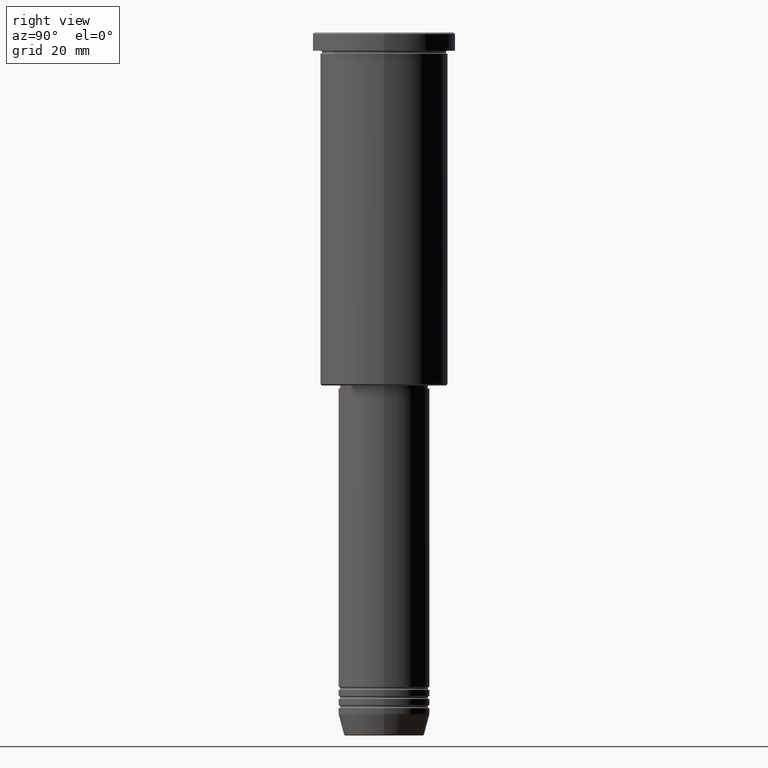
[diagram: clean part render]
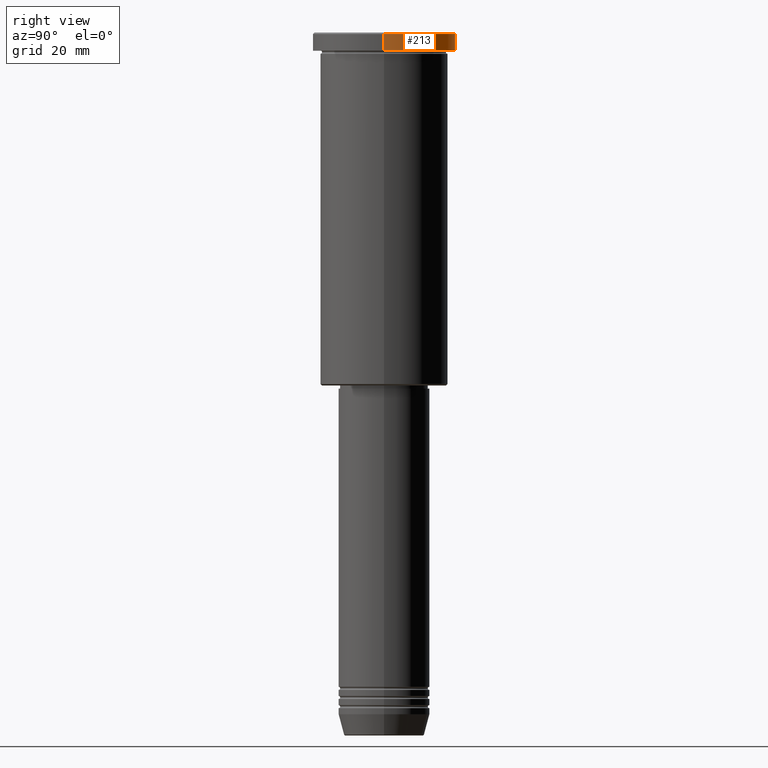
[diagram: same view with one face highlighted and labeled with its STEP entity id]
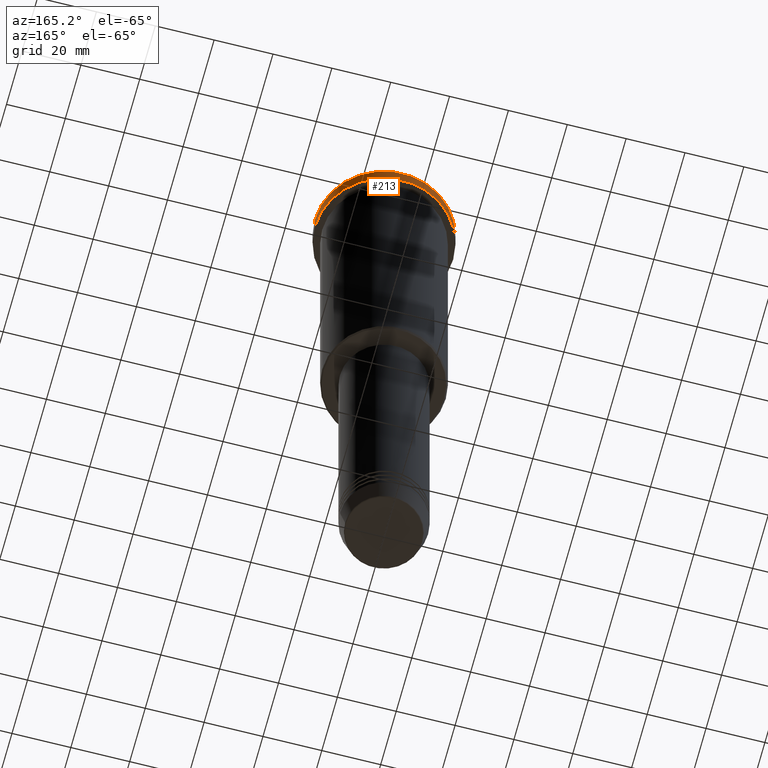
[diagram: same view with one face highlighted and labeled with its STEP entity id]
A machine part, right view. The second image highlights one B-rep face of the part: STEP entity #213.
A second angle (auxiliary view) of the same face is appended — the face is thin or edge-on in the first view.
In plain terms, the highlighted cylindrical surface (partial cylindrical patch) has radius 23.5 mm, axis along (-0, -0, 1).
Its self-contained STEP definition (entity closure, byte-faithful):
#4 = AXIS2_PLACEMENT_3D ( 'NONE', #529, #701, #798 ) ;
#48 = LINE ( 'NONE', #787, #902 ) ;
#56 = DIRECTION ( 'NONE',  ( -0.000000000000000000, -0.000000000000000000, 1.000000000000000000 ) ) ;
#68 = CARTESIAN_POINT ( 'NONE',  ( -23.50000000000000000, 2.877919977996280320E-15, -5.999999999999994671 ) ) ;
#79 = AXIS2_PLACEMENT_3D ( 'NONE', #1088, #836, #380 ) ;
#177 = CARTESIAN_POINT ( 'NONE',  ( 23.50000000000000000, 0.000000000000000000, -5.999999999999994671 ) ) ;
#204 = CIRCLE ( 'NONE', #79, 23.50000000000000000 ) ;
#206 = EDGE_CURVE ( 'NONE', #854, #250, #582, .T. ) ;
#210 = VERTEX_POINT ( 'NONE', #1060 ) ;
#213 = ADVANCED_FACE ( 'NONE', ( #991 ), #1065, .T. ) ;
#250 = VERTEX_POINT ( 'NONE', #615 ) ;
#271 = CARTESIAN_POINT ( 'NONE',  ( 0.000000000000000000, 0.000000000000000000, -0.5000000000000837108 ) ) ;
#279 = VECTOR ( 'NONE', #56, 1000.000000000000000 ) ;
#315 = EDGE_CURVE ( 'NONE', #210, #250, #466, .T. ) ;
#380 = DIRECTION ( 'NONE',  ( 1.000000000000000000, 0.000000000000000000, 0.000000000000000000 ) ) ;
#466 = CIRCLE ( 'NONE', #1127, 23.50000000000000000 ) ;
#529 = CARTESIAN_POINT ( 'NONE',  ( 0.000000000000000000, 0.000000000000000000, 0.000000000000000000 ) ) ;
#582 = LINE ( 'NONE', #789, #279 ) ;
#615 = CARTESIAN_POINT ( 'NONE',  ( 23.50000000000000000, 0.000000000000000000, -0.5000000000000837108 ) ) ;
#623 = DIRECTION ( 'NONE',  ( -0.000000000000000000, -0.000000000000000000, 1.000000000000000000 ) ) ;
#700 = EDGE_CURVE ( 'NONE', #730, #210, #48, .T. ) ;
#701 = DIRECTION ( 'NONE',  ( -0.000000000000000000, -0.000000000000000000, 1.000000000000000000 ) ) ;
#708 = ORIENTED_EDGE ( 'NONE', *, *, #315, .T. ) ;
#730 = VERTEX_POINT ( 'NONE', #68 ) ;
#787 = CARTESIAN_POINT ( 'NONE',  ( -23.50000000000000000, 2.877919977996280320E-15, 0.000000000000000000 ) ) ;
#789 = CARTESIAN_POINT ( 'NONE',  ( 23.50000000000000000, 0.000000000000000000, 0.000000000000000000 ) ) ;
#798 = DIRECTION ( 'NONE',  ( 1.000000000000000000, 0.000000000000000000, 0.000000000000000000 ) ) ;
#836 = DIRECTION ( 'NONE',  ( -0.000000000000000000, -0.000000000000000000, 1.000000000000000000 ) ) ;
#854 = VERTEX_POINT ( 'NONE', #177 ) ;
#884 = EDGE_LOOP ( 'NONE', ( #1034, #945, #708, #1013 ) ) ;
#888 = DIRECTION ( 'NONE',  ( 0.000000000000000000, 0.000000000000000000, -1.000000000000000000 ) ) ;
#902 = VECTOR ( 'NONE', #623, 1000.000000000000000 ) ;
#920 = EDGE_CURVE ( 'NONE', #854, #730, #204, .T. ) ;
#945 = ORIENTED_EDGE ( 'NONE', *, *, #700, .T. ) ;
#991 = FACE_OUTER_BOUND ( 'NONE', #884, .T. ) ;
#1013 = ORIENTED_EDGE ( 'NONE', *, *, #206, .F. ) ;
#1034 = ORIENTED_EDGE ( 'NONE', *, *, #920, .T. ) ;
#1060 = CARTESIAN_POINT ( 'NONE',  ( -23.50000000000000000, 2.877919977996280320E-15, -0.5000000000000837108 ) ) ;
#1065 = CYLINDRICAL_SURFACE ( 'NONE', #4, 23.50000000000000000 ) ;
#1088 = CARTESIAN_POINT ( 'NONE',  ( 0.000000000000000000, 0.000000000000000000, -5.999999999999994671 ) ) ;
#1127 = AXIS2_PLACEMENT_3D ( 'NONE', #271, #888, #1143 ) ;
#1143 = DIRECTION ( 'NONE',  ( 1.000000000000000000, 0.000000000000000000, 0.000000000000000000 ) ) ;